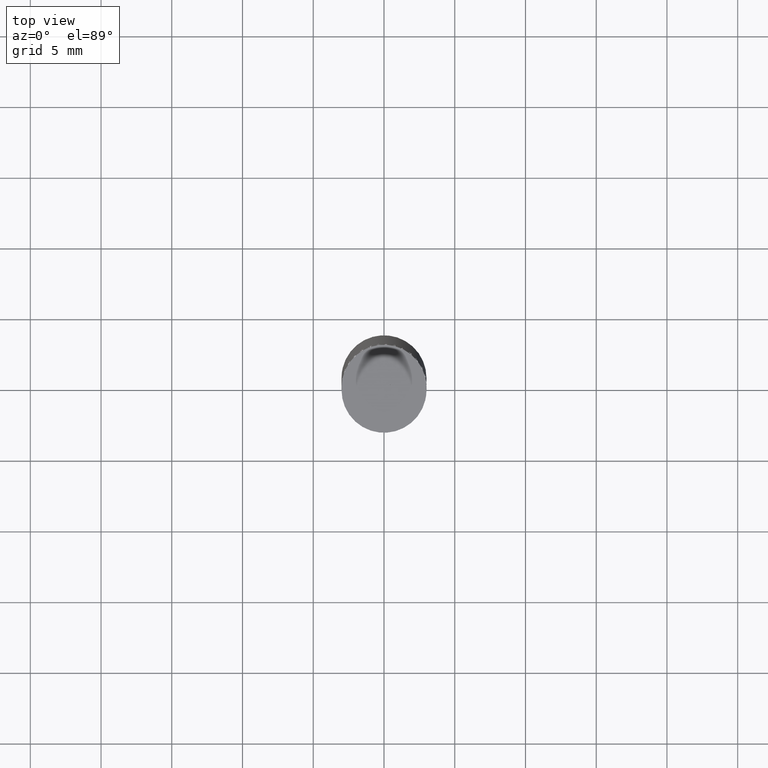
[diagram: clean part render]
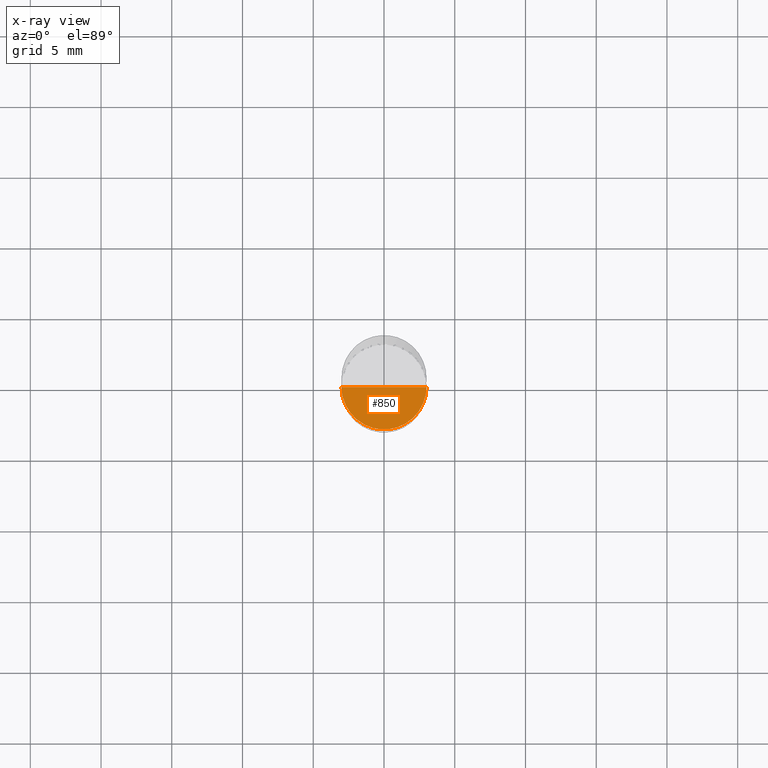
[diagram: x-ray — body ghosted, one internal face saturated and labeled with its STEP entity id]
A machine part, top view, then the same camera in x-ray: the body is ghosted and one INTERNAL B-rep face — a face not visible from any outside direction — is saturated and labeled: STEP entity #850.
In plain terms, the highlighted face is a freeform B-spline surface patch.
Its self-contained STEP definition (entity closure, byte-faithful):
#705=CARTESIAN_POINT('',(3.0,0.0,-3.0));
#709=CARTESIAN_POINT('',(-3.0,0.0,-3.0));
#710=CARTESIAN_POINT('',(0.0,0.0,-3.0));
#713=CARTESIAN_POINT('',(-3.0,-3.0,-3.0));
#714=CARTESIAN_POINT('',(0.0,-3.0,-3.0));
#715=CARTESIAN_POINT('',(3.0,-3.0,-3.0));
#835=(
BOUNDED_SURFACE()
B_SPLINE_SURFACE(1,2,(
(#709,#713,#714,#715,#705),
(#710,#710,#710,#710,#710)
), .UNSPECIFIED.,.F.,.F.,.F.)
B_SPLINE_SURFACE_WITH_KNOTS((2,2),(3,2,3),(
0.0,1.0),(
0.0,0.5,1.0), .UNSPECIFIED.)
GEOMETRIC_REPRESENTATION_ITEM()
RATIONAL_B_SPLINE_SURFACE(((1.0,0.707106781187,1.0,0.707106781187,1.0),
(1.0,0.707106781187,1.0,0.707106781187,1.0)
))
REPRESENTATION_ITEM('')
SURFACE()
);
#836=(
BOUNDED_CURVE()
B_SPLINE_CURVE(2,(#705,#715,#714,#713,#709),.UNSPECIFIED.,.F.,.F.)
B_SPLINE_CURVE_WITH_KNOTS((3,2,3),
(0.0,0.5,1.0),.UNSPECIFIED.)
CURVE()
GEOMETRIC_REPRESENTATION_ITEM()
RATIONAL_B_SPLINE_CURVE((1.0,0.707106781187,1.0,0.707106781187,1.0))
REPRESENTATION_ITEM('')
);
#837=(
BOUNDED_CURVE()
B_SPLINE_CURVE(1,(#709,#710),.UNSPECIFIED.,.F.,.F.)
B_SPLINE_CURVE_WITH_KNOTS((2,2),
(0.0,1.0),.UNSPECIFIED.)
CURVE()
GEOMETRIC_REPRESENTATION_ITEM()
RATIONAL_B_SPLINE_CURVE((1.0,1.0))
REPRESENTATION_ITEM('')
);
#838=(
BOUNDED_CURVE()
B_SPLINE_CURVE(1,(#710,#705),.UNSPECIFIED.,.F.,.F.)
B_SPLINE_CURVE_WITH_KNOTS((2,2),
(0.0,1.0),.UNSPECIFIED.)
CURVE()
GEOMETRIC_REPRESENTATION_ITEM()
RATIONAL_B_SPLINE_CURVE((1.0,1.0))
REPRESENTATION_ITEM('')
);
#839=VERTEX_POINT('',#705);
#840=VERTEX_POINT('',#709);
#841=VERTEX_POINT('',#710);
#842=EDGE_CURVE('',#839,#840,#836,.T.);
#843=EDGE_CURVE('',#840,#841,#837,.T.);
#844=EDGE_CURVE('',#841,#839,#838,.T.);
#845=ORIENTED_EDGE('',*,*,#842,.T.);
#846=ORIENTED_EDGE('',*,*,#843,.T.);
#847=ORIENTED_EDGE('',*,*,#844,.T.);
#848=EDGE_LOOP('',(#845,#846,#847));
#849=FACE_OUTER_BOUND('',#848,.T.);
#850=ADVANCED_FACE('',(#849),#835,.T.);